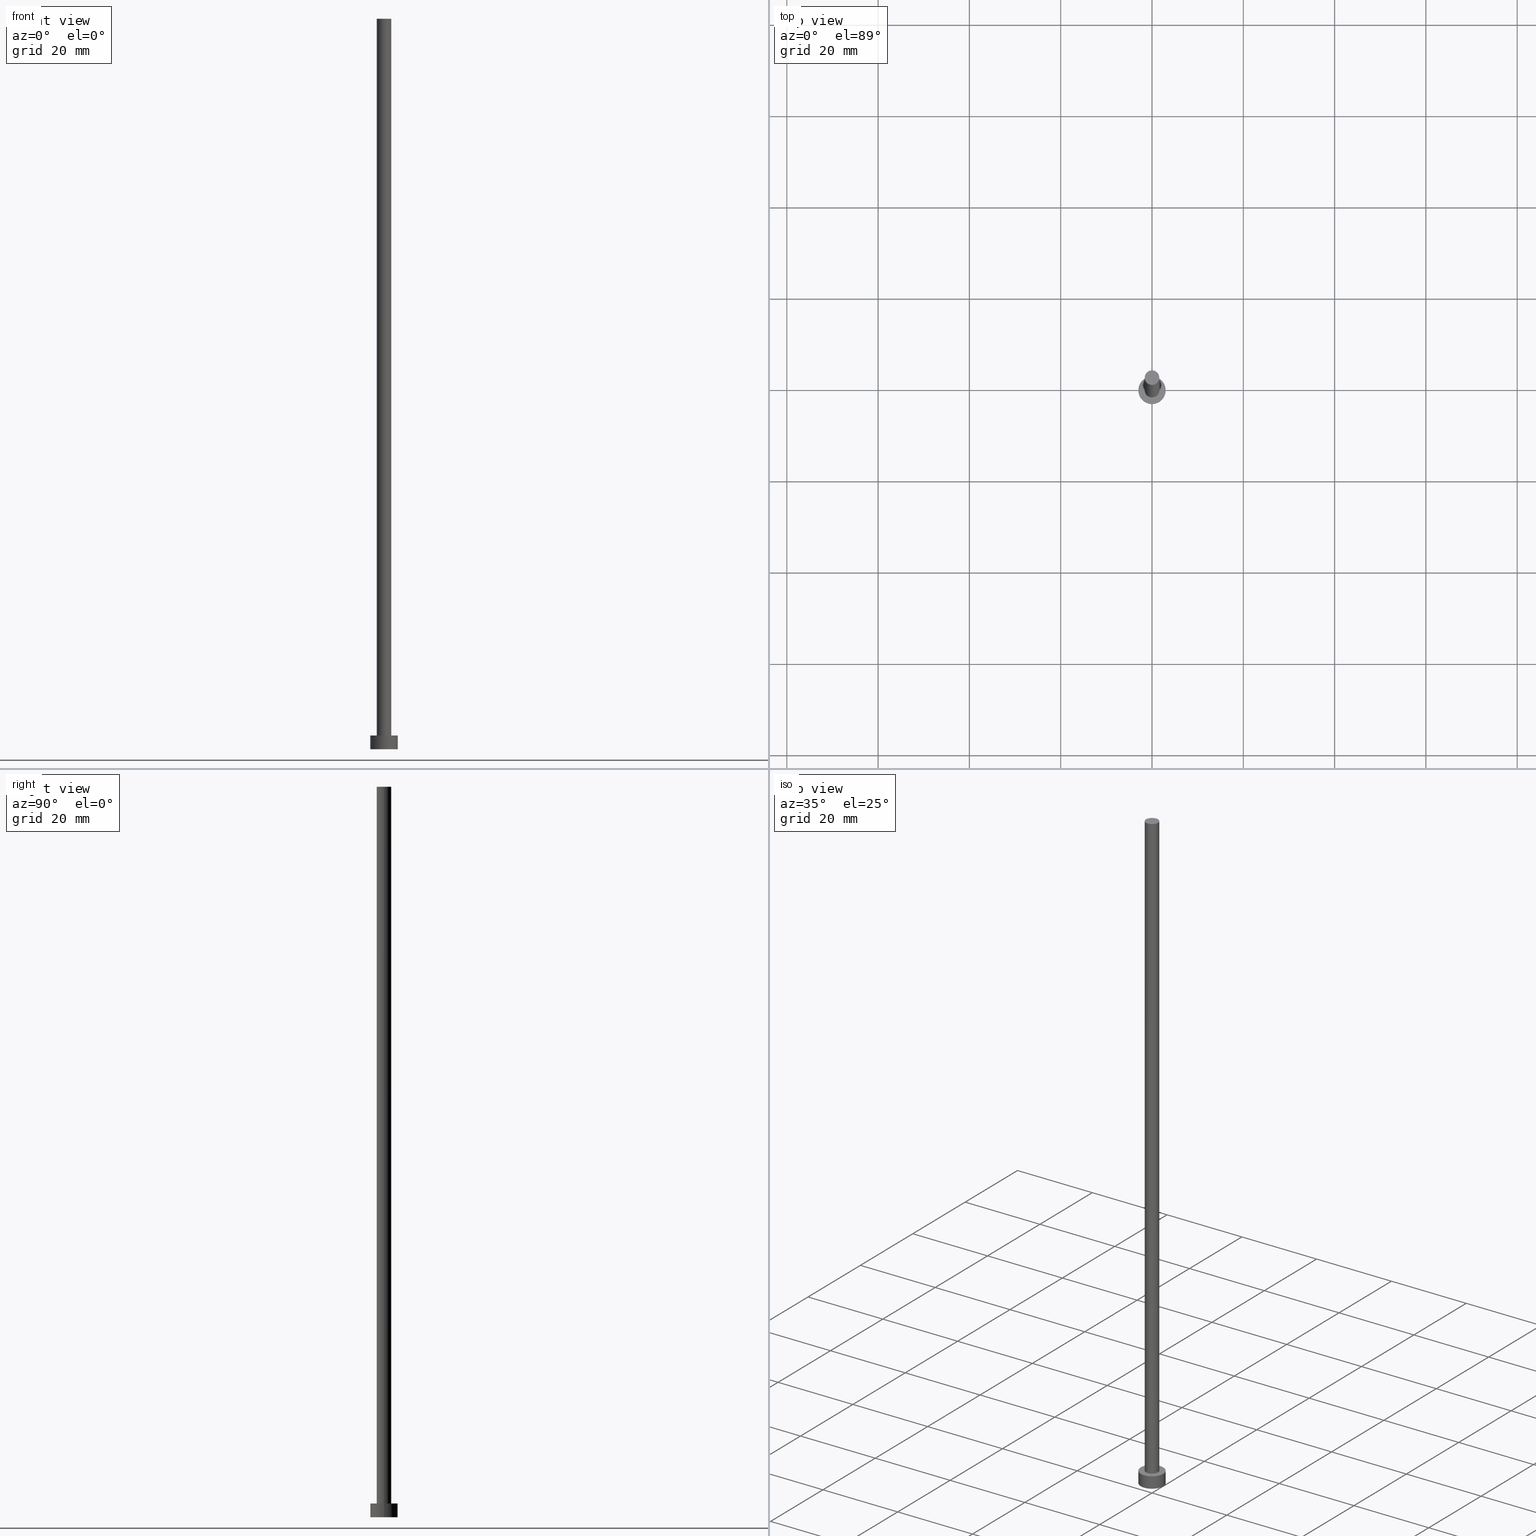
[diagram: canonical four-view strip — front | top / right | iso, engineering-drawing reading convention]
A machine part, canonical four-view strip (front | top / right | iso — engineering-drawing reading convention). The complete STEP part file that produces these views, byte-faithful:
ISO-10303-21;
HEADER;
FILE_DESCRIPTION (( 'STEP AP203' ),
    '1' );
FILE_NAME ('ce15.STEP',
    '2023-02-13T15:36:04',
    ( '' ),
    ( '' ),
    'SwSTEP 2.0',
    'SolidWorks 2019',
    '' );
FILE_SCHEMA (( 'CONFIG_CONTROL_DESIGN' ));
ENDSEC;

DATA;
#1 = CALENDAR_DATE ( 2023, 13, 2 ) ;
#2 = DATE_TIME_ROLE ( 'classification_date' ) ;
#3 = ORIENTED_EDGE ( 'NONE', *, *, #139, .F. ) ;
#4 = APPROVAL_STATUS ( 'not_yet_approved' ) ;
#5 = VERTEX_POINT ( 'NONE', #132 ) ;
#6 = CALENDAR_DATE ( 2023, 13, 2 ) ;
#7 = DIRECTION ( 'NONE',  ( -0.000000000000000000, -0.000000000000000000, -1.000000000000000000 ) ) ;
#8 = AXIS2_PLACEMENT_3D ( 'NONE', #33, #193, #198 ) ;
#9 = ORIENTED_EDGE ( 'NONE', *, *, #24, .F. ) ;
#10 = LINE ( 'NONE', #153, #67 ) ;
#11 = DIRECTION ( 'NONE',  ( 1.000000000000000000, 0.000000000000000000, -0.000000000000000000 ) ) ;
#12 = VECTOR ( 'NONE', #7, 1000.000000000000000 ) ;
#13 = AXIS2_PLACEMENT_3D ( 'NONE', #159, #118, #199 ) ;
#14 = CARTESIAN_POINT ( 'NONE',  ( 0.000000000000000000, 0.000000000000000000, 160.0000000000000000 ) ) ;
#15 = CARTESIAN_POINT ( 'NONE',  ( 1.600000000000000089, 1.959434878635765230E-16, 160.0000000000000000 ) ) ;
#16 = FACE_BOUND ( 'NONE', #186, .T. ) ;
#17 = DIRECTION ( 'NONE',  ( 1.000000000000000000, 0.000000000000000000, 0.000000000000000000 ) ) ;
#18 = DIRECTION ( 'NONE',  ( 1.000000000000000000, 0.000000000000000000, -0.000000000000000000 ) ) ;
#19 = DIRECTION ( 'NONE',  ( 1.000000000000000000, 0.000000000000000000, 0.000000000000000000 ) ) ;
#20 = VERTEX_POINT ( 'NONE', #71 ) ;
#21 = CIRCLE ( 'NONE', #129, 1.600000000000000089 ) ;
#22 = CALENDAR_DATE ( 2023, 13, 2 ) ;
#23 = PERSON_AND_ORGANIZATION_ROLE ( 'classification_officer' ) ;
#24 = EDGE_CURVE ( 'NONE', #5, #249, #202, .T. ) ;
#25 = COORDINATED_UNIVERSAL_TIME_OFFSET ( 1, 0, .AHEAD. ) ;
#26 = CC_DESIGN_APPROVAL ( #174, ( #141 ) ) ;
#27 = APPROVAL_DATE_TIME ( #96, #174 ) ;
#28 = EDGE_LOOP ( 'NONE', ( #97, #240 ) ) ;
#29 = VERTEX_POINT ( 'NONE', #229 ) ;
#30 = DIRECTION ( 'NONE',  ( -0.000000000000000000, -0.000000000000000000, -1.000000000000000000 ) ) ;
#31 = AXIS2_PLACEMENT_3D ( 'NONE', #93, #37, #138 ) ;
#32 = DIRECTION ( 'NONE',  ( 1.000000000000000000, 0.000000000000000000, 0.000000000000000000 ) ) ;
#33 = CARTESIAN_POINT ( 'NONE',  ( 0.000000000000000000, 0.000000000000000000, 0.000000000000000000 ) ) ;
#34 = CARTESIAN_POINT ( 'NONE',  ( 0.000000000000000000, 0.000000000000000000, 160.0000000000000000 ) ) ;
#35 = AXIS2_PLACEMENT_3D ( 'NONE', #130, #54, #211 ) ;
#36 = AXIS2_PLACEMENT_3D ( 'NONE', #62, #40, #17 ) ;
#37 = DIRECTION ( 'NONE',  ( 0.000000000000000000, 0.000000000000000000, 1.000000000000000000 ) ) ;
#38 = LINE ( 'NONE', #75, #72 ) ;
#39 = PRODUCT_DEFINITION_SHAPE ( 'NONE', 'NONE',  #147 ) ;
#40 = DIRECTION ( 'NONE',  ( 0.000000000000000000, 0.000000000000000000, 1.000000000000000000 ) ) ;
#41 = LOCAL_TIME ( 16, 36, 4.000000000000000000, #205 ) ;
#42 = CARTESIAN_POINT ( 'NONE',  ( -3.000000000000000444, 0.000000000000000000, 0.000000000000000000 ) ) ;
#43 = ADVANCED_FACE ( 'NONE', ( #85 ), #131, .T. ) ;
#44 = APPLICATION_PROTOCOL_DEFINITION ( 'international standard', 'config_control_design', 1994, #90 ) ;
#45 = APPROVAL_DATE_TIME ( #78, #69 ) ;
#46 = PERSON_AND_ORGANIZATION ( #137, #190 ) ;
#47 = AXIS2_PLACEMENT_3D ( 'NONE', #154, #83, #53 ) ;
#48 = AXIS2_PLACEMENT_3D ( 'NONE', #180, #237, #143 ) ;
#49 = DATE_AND_TIME ( #6, #175 ) ;
#50 = EDGE_LOOP ( 'NONE', ( #74, #227 ) ) ;
#51 = PERSON_AND_ORGANIZATION_ROLE ( 'creator' ) ;
#52 = ORIENTED_EDGE ( 'NONE', *, *, #133, .T. ) ;
#53 = DIRECTION ( 'NONE',  ( 1.000000000000000000, 0.000000000000000000, 0.000000000000000000 ) ) ;
#54 = DIRECTION ( 'NONE',  ( -0.000000000000000000, -0.000000000000000000, -1.000000000000000000 ) ) ;
#55 = ORIENTED_EDGE ( 'NONE', *, *, #125, .F. ) ;
#56 = ORIENTED_EDGE ( 'NONE', *, *, #247, .F. ) ;
#57 = CARTESIAN_POINT ( 'NONE',  ( 0.000000000000000000, 0.000000000000000000, 160.0000000000000000 ) ) ;
#58 = ADVANCED_FACE ( 'NONE', ( #110 ), #89, .T. ) ;
#59 = DIRECTION ( 'NONE',  ( 0.000000000000000000, 0.000000000000000000, 1.000000000000000000 ) ) ;
#60 = CYLINDRICAL_SURFACE ( 'NONE', #48, 3.000000000000000444 ) ;
#61 = ADVANCED_FACE ( 'NONE', ( #214 ), #73, .T. ) ;
#62 = CARTESIAN_POINT ( 'NONE',  ( 0.000000000000000000, 0.000000000000000000, 0.000000000000000000 ) ) ;
#63 = APPROVAL_ROLE ( '' ) ;
#64 = DESIGN_CONTEXT ( 'detailed design', #230, 'design' ) ;
#65 = PERSON_AND_ORGANIZATION_ROLE ( 'design_owner' ) ;
#66 = EDGE_LOOP ( 'NONE', ( #243, #87, #152, #165 ) ) ;
#67 = VECTOR ( 'NONE', #171, 1000.000000000000000 ) ;
#68 = ORIENTED_EDGE ( 'NONE', *, *, #252, .T. ) ;
#69 = APPROVAL ( #145, 'NEUR�EN�' ) ;
#70 = DIRECTION ( 'NONE',  ( 0.000000000000000000, 0.000000000000000000, 1.000000000000000000 ) ) ;
#71 = CARTESIAN_POINT ( 'NONE',  ( -1.600000000000000089, 0.000000000000000000, 160.0000000000000000 ) ) ;
#72 = VECTOR ( 'NONE', #179, 1000.000000000000000 ) ;
#73 = PLANE ( 'NONE',  #183 ) ;
#74 = ORIENTED_EDGE ( 'NONE', *, *, #235, .F. ) ;
#75 = CARTESIAN_POINT ( 'NONE',  ( -3.000000000000000444, 0.000000000000000000, 3.000000000000000000 ) ) ;
#76 = LOCAL_TIME ( 16, 36, 4.000000000000000000, #148 ) ;
#77 = DIRECTION ( 'NONE',  ( 0.000000000000000000, 0.000000000000000000, 1.000000000000000000 ) ) ;
#78 = DATE_AND_TIME ( #1, #184 ) ;
#79 = COORDINATED_UNIVERSAL_TIME_OFFSET ( 1, 0, .AHEAD. ) ;
#80 = ORIENTED_EDGE ( 'NONE', *, *, #204, .F. ) ;
#81 = MANIFOLD_SOLID_BREP ( 'P�idat vysunut�m3', #241 ) ;
#82 = ADVANCED_BREP_SHAPE_REPRESENTATION ( 'ce15', ( #81, #136 ), #122 ) ;
#83 = DIRECTION ( 'NONE',  ( 0.000000000000000000, 0.000000000000000000, 1.000000000000000000 ) ) ;
#84 = CIRCLE ( 'NONE', #121, 3.000000000000000444 ) ;
#85 = FACE_OUTER_BOUND ( 'NONE', #66, .T. ) ;
#86 = EDGE_CURVE ( 'NONE', #20, #225, #207, .T. ) ;
#87 = ORIENTED_EDGE ( 'NONE', *, *, #86, .F. ) ;
#88 = AXIS2_PLACEMENT_3D ( 'NONE', #108, #210, #32 ) ;
#89 = CYLINDRICAL_SURFACE ( 'NONE', #35, 3.000000000000000444 ) ;
#90 = APPLICATION_CONTEXT ( 'configuration controlled 3d designs of mechanical parts and assemblies' ) ;
#91 = DIRECTION ( 'NONE',  ( 0.000000000000000000, 0.000000000000000000, 1.000000000000000000 ) ) ;
#92 = PLANE ( 'NONE',  #111 ) ;
#93 = CARTESIAN_POINT ( 'NONE',  ( 0.000000000000000000, 0.000000000000000000, 3.000000000000000000 ) ) ;
#94 = FACE_OUTER_BOUND ( 'NONE', #50, .T. ) ;
#95 = CC_DESIGN_APPROVAL ( #69, ( #255 ) ) ;
#96 = DATE_AND_TIME ( #22, #41 ) ;
#97 = ORIENTED_EDGE ( 'NONE', *, *, #86, .T. ) ;
#98 = SECURITY_CLASSIFICATION_LEVEL ( 'unclassified' ) ;
#99 = PERSON_AND_ORGANIZATION ( #137, #190 ) ;
#100 = ADVANCED_FACE ( 'NONE', ( #194 ), #192, .T. ) ;
#101 = PERSON_AND_ORGANIZATION ( #137, #190 ) ;
#102 = CIRCLE ( 'NONE', #13, 1.600000000000000089 ) ;
#103 = VERTEX_POINT ( 'NONE', #250 ) ;
#104 = APPROVAL ( #239, 'NEUR�EN�' ) ;
#105 = PERSON_AND_ORGANIZATION_ROLE ( 'design_supplier' ) ;
#106 = UNCERTAINTY_MEASURE_WITH_UNIT (LENGTH_MEASURE( 1.000000000000000082E-05 ), #135, 'distance_accuracy_value', 'NONE');
#107 = ORIENTED_EDGE ( 'NONE', *, *, #247, .T. ) ;
#108 = CARTESIAN_POINT ( 'NONE',  ( 0.000000000000000000, 0.000000000000000000, 160.0000000000000000 ) ) ;
#109 = EDGE_CURVE ( 'NONE', #249, #103, #245, .T. ) ;
#110 = FACE_OUTER_BOUND ( 'NONE', #222, .T. ) ;
#111 = AXIS2_PLACEMENT_3D ( 'NONE', #182, #77, #254 ) ;
#112 = CC_DESIGN_APPROVAL ( #104, ( #147 ) ) ;
#113 = DIRECTION ( 'NONE',  ( -0.000000000000000000, -0.000000000000000000, -1.000000000000000000 ) ) ;
#114 = DIRECTION ( 'NONE',  ( 0.000000000000000000, 0.000000000000000000, 1.000000000000000000 ) ) ;
#115 = APPROVAL_PERSON_ORGANIZATION ( #238, #69, #63 ) ;
#116 =( NAMED_UNIT ( * ) PLANE_ANGLE_UNIT ( ) SI_UNIT ( $, .RADIAN. ) );
#117 = EDGE_CURVE ( 'NONE', #225, #29, #10, .T. ) ;
#118 = DIRECTION ( 'NONE',  ( 0.000000000000000000, 0.000000000000000000, 1.000000000000000000 ) ) ;
#119 = MECHANICAL_CONTEXT ( 'NONE', #90, 'mechanical' ) ;
#120 = APPLICATION_PROTOCOL_DEFINITION ( 'international standard', 'config_control_design', 1994, #230 ) ;
#121 = AXIS2_PLACEMENT_3D ( 'NONE', #191, #70, #212 ) ;
#122 =( GEOMETRIC_REPRESENTATION_CONTEXT ( 3 ) GLOBAL_UNCERTAINTY_ASSIGNED_CONTEXT ( ( #106 ) ) GLOBAL_UNIT_ASSIGNED_CONTEXT ( ( #135, #116, #196 ) ) REPRESENTATION_CONTEXT ( 'NONE', 'WORKASPACE' ) );
#123 = DATE_AND_TIME ( #187, #76 ) ;
#124 = PERSON_AND_ORGANIZATION ( #137, #190 ) ;
#125 = EDGE_CURVE ( 'NONE', #249, #5, #84, .T. ) ;
#126 = DATE_AND_TIME ( #223, #151 ) ;
#127 = CC_DESIGN_PERSON_AND_ORGANIZATION_ASSIGNMENT ( #218, #51, ( #141 ) ) ;
#128 = AXIS2_PLACEMENT_3D ( 'NONE', #14, #30, #172 ) ;
#129 = AXIS2_PLACEMENT_3D ( 'NONE', #57, #91, #19 ) ;
#130 = CARTESIAN_POINT ( 'NONE',  ( 0.000000000000000000, 0.000000000000000000, 3.000000000000000000 ) ) ;
#131 = CYLINDRICAL_SURFACE ( 'NONE', #142, 1.600000000000000089 ) ;
#132 = CARTESIAN_POINT ( 'NONE',  ( -3.000000000000000444, 0.000000000000000000, 3.000000000000000000 ) ) ;
#133 = EDGE_CURVE ( 'NONE', #103, #188, #220, .T. ) ;
#134 = ORIENTED_EDGE ( 'NONE', *, *, #109, .T. ) ;
#135 =( LENGTH_UNIT ( ) NAMED_UNIT ( * ) SI_UNIT ( .MILLI., .METRE. ) );
#136 = AXIS2_PLACEMENT_3D ( 'NONE', #232, #59, #216 ) ;
#137 = PERSON ( 'NEUR�EN�', 'NEUR�EN�', 'NEUR�EN�', ('NEUR�EN�'), ('NEUR�EN�'), ('NEUR�EN�') ) ;
#138 = DIRECTION ( 'NONE',  ( 1.000000000000000000, 0.000000000000000000, 0.000000000000000000 ) ) ;
#139 = EDGE_CURVE ( 'NONE', #20, #156, #160, .T. ) ;
#140 = PLANE ( 'NONE',  #244 ) ;
#141 = PRODUCT_DEFINITION_FORMATION_WITH_SPECIFIED_SOURCE ( 'LIBOVOLN�', '', #234, .NOT_KNOWN. ) ;
#142 = AXIS2_PLACEMENT_3D ( 'NONE', #228, #113, #173 ) ;
#143 = DIRECTION ( 'NONE',  ( -1.000000000000000000, 0.000000000000000000, 0.000000000000000000 ) ) ;
#144 = APPROVAL_DATE_TIME ( #123, #104 ) ;
#145 = APPROVAL_STATUS ( 'not_yet_approved' ) ;
#146 = ORIENTED_EDGE ( 'NONE', *, *, #109, .F. ) ;
#147 = PRODUCT_DEFINITION ( 'NEZN�M�', '', #141, #64 ) ;
#148 = COORDINATED_UNIVERSAL_TIME_OFFSET ( 1, 0, .AHEAD. ) ;
#149 = ORIENTED_EDGE ( 'NONE', *, *, #24, .T. ) ;
#150 = ORIENTED_EDGE ( 'NONE', *, *, #117, .T. ) ;
#151 = LOCAL_TIME ( 16, 36, 4.000000000000000000, #25 ) ;
#152 = ORIENTED_EDGE ( 'NONE', *, *, #139, .T. ) ;
#153 = CARTESIAN_POINT ( 'NONE',  ( 1.600000000000000089, 1.959434878635765230E-16, 160.0000000000000000 ) ) ;
#154 = CARTESIAN_POINT ( 'NONE',  ( 0.000000000000000000, 0.000000000000000000, 3.000000000000000000 ) ) ;
#155 = EDGE_LOOP ( 'NONE', ( #55, #134, #52, #56 ) ) ;
#156 = VERTEX_POINT ( 'NONE', #197 ) ;
#157 = ADVANCED_FACE ( 'NONE', ( #94 ), #92, .F. ) ;
#158 = CIRCLE ( 'NONE', #31, 1.600000000000000089 ) ;
#159 = CARTESIAN_POINT ( 'NONE',  ( 0.000000000000000000, 0.000000000000000000, 3.000000000000000000 ) ) ;
#160 = LINE ( 'NONE', #231, #189 ) ;
#161 = DIRECTION ( 'NONE',  ( -0.000000000000000000, -0.000000000000000000, -1.000000000000000000 ) ) ;
#162 = APPROVAL_ROLE ( '' ) ;
#163 = PERSON_AND_ORGANIZATION ( #137, #190 ) ;
#164 = CC_DESIGN_DATE_AND_TIME_ASSIGNMENT ( #49, #2, ( #255 ) ) ;
#165 = ORIENTED_EDGE ( 'NONE', *, *, #203, .T. ) ;
#166 = DATE_TIME_ROLE ( 'creation_date' ) ;
#167 = ORIENTED_EDGE ( 'NONE', *, *, #203, .F. ) ;
#168 = PRODUCT_RELATED_PRODUCT_CATEGORY ( 'detail', '', ( #234 ) ) ;
#169 = ORIENTED_EDGE ( 'NONE', *, *, #252, .F. ) ;
#170 = APPROVAL_PERSON_ORGANIZATION ( #206, #104, #162 ) ;
#171 = DIRECTION ( 'NONE',  ( -0.000000000000000000, -0.000000000000000000, -1.000000000000000000 ) ) ;
#172 = DIRECTION ( 'NONE',  ( -1.000000000000000000, 0.000000000000000000, 0.000000000000000000 ) ) ;
#173 = DIRECTION ( 'NONE',  ( -1.000000000000000000, 0.000000000000000000, 0.000000000000000000 ) ) ;
#174 = APPROVAL ( #4, 'NEUR�EN�' ) ;
#175 = LOCAL_TIME ( 16, 36, 4.000000000000000000, #79 ) ;
#176 = ADVANCED_FACE ( 'NONE', ( #251 ), #60, .T. ) ;
#177 = DIRECTION ( 'NONE',  ( 0.000000000000000000, 0.000000000000000000, 1.000000000000000000 ) ) ;
#178 = CC_DESIGN_SECURITY_CLASSIFICATION ( #255, ( #141 ) ) ;
#179 = DIRECTION ( 'NONE',  ( -0.000000000000000000, -0.000000000000000000, -1.000000000000000000 ) ) ;
#180 = CARTESIAN_POINT ( 'NONE',  ( 0.000000000000000000, 0.000000000000000000, 3.000000000000000000 ) ) ;
#181 = CC_DESIGN_PERSON_AND_ORGANIZATION_ASSIGNMENT ( #46, #65, ( #234 ) ) ;
#182 = CARTESIAN_POINT ( 'NONE',  ( 0.000000000000000000, 0.000000000000000000, 0.000000000000000000 ) ) ;
#183 = AXIS2_PLACEMENT_3D ( 'NONE', #34, #114, #11 ) ;
#184 = LOCAL_TIME ( 16, 36, 4.000000000000000000, #219 ) ;
#185 = SHAPE_DEFINITION_REPRESENTATION ( #39, #82 ) ;
#186 = EDGE_LOOP ( 'NONE', ( #167, #169 ) ) ;
#187 = CALENDAR_DATE ( 2023, 13, 2 ) ;
#188 = VERTEX_POINT ( 'NONE', #42 ) ;
#189 = VECTOR ( 'NONE', #161, 1000.000000000000000 ) ;
#190 = ORGANIZATION ( 'NEUR�EN�', 'NEUR�EN�', '' ) ;
#191 = CARTESIAN_POINT ( 'NONE',  ( 0.000000000000000000, 0.000000000000000000, 3.000000000000000000 ) ) ;
#192 = CYLINDRICAL_SURFACE ( 'NONE', #128, 1.600000000000000089 ) ;
#193 = DIRECTION ( 'NONE',  ( 0.000000000000000000, 0.000000000000000000, 1.000000000000000000 ) ) ;
#194 = FACE_OUTER_BOUND ( 'NONE', #226, .T. ) ;
#195 = APPROVAL_PERSON_ORGANIZATION ( #124, #174, #221 ) ;
#196 =( NAMED_UNIT ( * ) SI_UNIT ( $, .STERADIAN. ) SOLID_ANGLE_UNIT ( ) );
#197 = CARTESIAN_POINT ( 'NONE',  ( -1.600000000000000089, 0.000000000000000000, 3.000000000000000000 ) ) ;
#198 = DIRECTION ( 'NONE',  ( 1.000000000000000000, 0.000000000000000000, 0.000000000000000000 ) ) ;
#199 = DIRECTION ( 'NONE',  ( 1.000000000000000000, 0.000000000000000000, 0.000000000000000000 ) ) ;
#200 = PERSON_AND_ORGANIZATION_ROLE ( 'creator' ) ;
#201 = EDGE_LOOP ( 'NONE', ( #149, #242 ) ) ;
#202 = CIRCLE ( 'NONE', #47, 3.000000000000000444 ) ;
#203 = EDGE_CURVE ( 'NONE', #156, #29, #158, .T. ) ;
#204 = EDGE_CURVE ( 'NONE', #225, #20, #21, .T. ) ;
#205 = COORDINATED_UNIVERSAL_TIME_OFFSET ( 1, 0, .AHEAD. ) ;
#206 = PERSON_AND_ORGANIZATION ( #137, #190 ) ;
#207 = CIRCLE ( 'NONE', #88, 1.600000000000000089 ) ;
#208 = CARTESIAN_POINT ( 'NONE',  ( 3.000000000000000444, 3.673940397442060361E-16, 3.000000000000000000 ) ) ;
#209 = CC_DESIGN_PERSON_AND_ORGANIZATION_ASSIGNMENT ( #101, #23, ( #255 ) ) ;
#210 = DIRECTION ( 'NONE',  ( 0.000000000000000000, 0.000000000000000000, 1.000000000000000000 ) ) ;
#211 = DIRECTION ( 'NONE',  ( -1.000000000000000000, 0.000000000000000000, 0.000000000000000000 ) ) ;
#212 = DIRECTION ( 'NONE',  ( 1.000000000000000000, 0.000000000000000000, 0.000000000000000000 ) ) ;
#213 = CC_DESIGN_PERSON_AND_ORGANIZATION_ASSIGNMENT ( #163, #105, ( #141 ) ) ;
#214 = FACE_OUTER_BOUND ( 'NONE', #28, .T. ) ;
#215 = ADVANCED_FACE ( 'NONE', ( #16, #233 ), #140, .T. ) ;
#216 = DIRECTION ( 'NONE',  ( 1.000000000000000000, 0.000000000000000000, 0.000000000000000000 ) ) ;
#217 = CC_DESIGN_PERSON_AND_ORGANIZATION_ASSIGNMENT ( #99, #200, ( #147 ) ) ;
#218 = PERSON_AND_ORGANIZATION ( #137, #190 ) ;
#219 = COORDINATED_UNIVERSAL_TIME_OFFSET ( 1, 0, .AHEAD. ) ;
#220 = CIRCLE ( 'NONE', #8, 3.000000000000000444 ) ;
#221 = APPROVAL_ROLE ( '' ) ;
#222 = EDGE_LOOP ( 'NONE', ( #146, #9, #107, #246 ) ) ;
#223 = CALENDAR_DATE ( 2023, 13, 2 ) ;
#224 = CC_DESIGN_DATE_AND_TIME_ASSIGNMENT ( #126, #166, ( #147 ) ) ;
#225 = VERTEX_POINT ( 'NONE', #15 ) ;
#226 = EDGE_LOOP ( 'NONE', ( #80, #150, #68, #3 ) ) ;
#227 = ORIENTED_EDGE ( 'NONE', *, *, #133, .F. ) ;
#228 = CARTESIAN_POINT ( 'NONE',  ( 0.000000000000000000, 0.000000000000000000, 160.0000000000000000 ) ) ;
#229 = CARTESIAN_POINT ( 'NONE',  ( 1.600000000000000089, 1.959434878635765230E-16, 3.000000000000000000 ) ) ;
#230 = APPLICATION_CONTEXT ( 'configuration controlled 3d designs of mechanical parts and assemblies' ) ;
#231 = CARTESIAN_POINT ( 'NONE',  ( -1.600000000000000089, 0.000000000000000000, 160.0000000000000000 ) ) ;
#232 = CARTESIAN_POINT ( 'NONE',  ( 0.000000000000000000, 0.000000000000000000, 0.000000000000000000 ) ) ;
#233 = FACE_OUTER_BOUND ( 'NONE', #201, .T. ) ;
#234 = PRODUCT ( 'ce15', 'ce15', '', ( #119 ) ) ;
#235 = EDGE_CURVE ( 'NONE', #188, #103, #248, .T. ) ;
#236 = CARTESIAN_POINT ( 'NONE',  ( 0.000000000000000000, 0.000000000000000000, 3.000000000000000000 ) ) ;
#237 = DIRECTION ( 'NONE',  ( -0.000000000000000000, -0.000000000000000000, -1.000000000000000000 ) ) ;
#238 = PERSON_AND_ORGANIZATION ( #137, #190 ) ;
#239 = APPROVAL_STATUS ( 'not_yet_approved' ) ;
#240 = ORIENTED_EDGE ( 'NONE', *, *, #204, .T. ) ;
#241 = CLOSED_SHELL ( 'NONE', ( #100, #176, #58, #215, #157, #43, #61 ) ) ;
#242 = ORIENTED_EDGE ( 'NONE', *, *, #125, .T. ) ;
#243 = ORIENTED_EDGE ( 'NONE', *, *, #117, .F. ) ;
#244 = AXIS2_PLACEMENT_3D ( 'NONE', #236, #177, #18 ) ;
#245 = LINE ( 'NONE', #208, #12 ) ;
#246 = ORIENTED_EDGE ( 'NONE', *, *, #235, .T. ) ;
#247 = EDGE_CURVE ( 'NONE', #5, #188, #38, .T. ) ;
#248 = CIRCLE ( 'NONE', #36, 3.000000000000000444 ) ;
#249 = VERTEX_POINT ( 'NONE', #253 ) ;
#250 = CARTESIAN_POINT ( 'NONE',  ( 3.000000000000000444, 3.673940397442060361E-16, 0.000000000000000000 ) ) ;
#251 = FACE_OUTER_BOUND ( 'NONE', #155, .T. ) ;
#252 = EDGE_CURVE ( 'NONE', #29, #156, #102, .T. ) ;
#253 = CARTESIAN_POINT ( 'NONE',  ( 3.000000000000000444, 3.673940397442060361E-16, 3.000000000000000000 ) ) ;
#254 = DIRECTION ( 'NONE',  ( 1.000000000000000000, 0.000000000000000000, -0.000000000000000000 ) ) ;
#255 = SECURITY_CLASSIFICATION ( '', '', #98 ) ;
ENDSEC;
END-ISO-10303-21;
